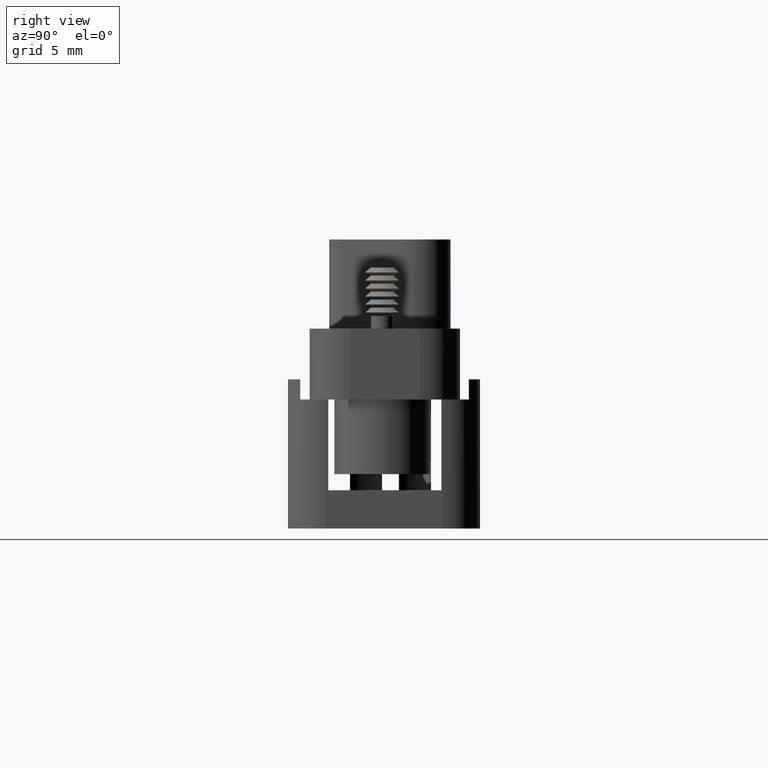
[diagram: clean part render]
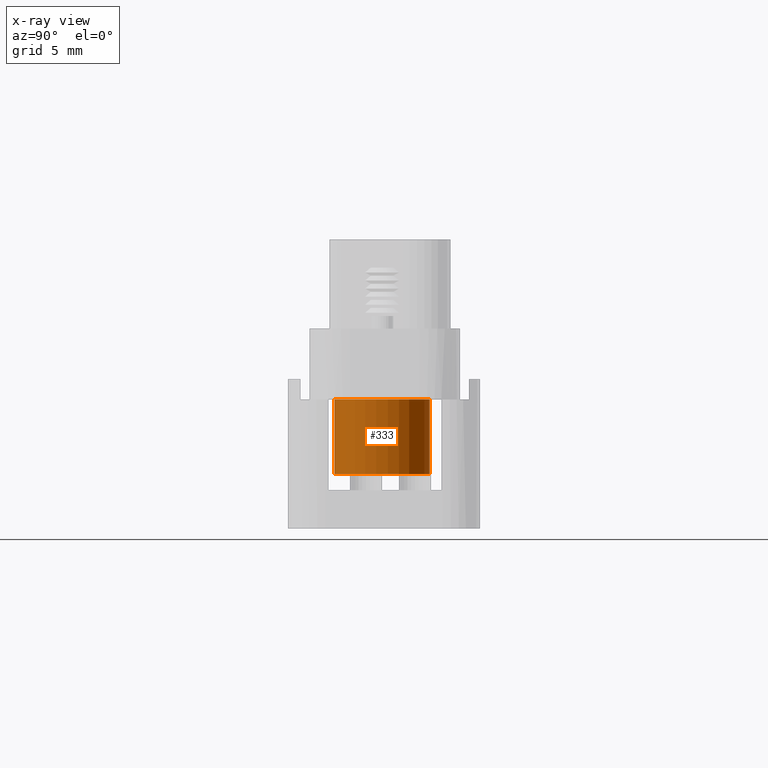
[diagram: x-ray — body ghosted, one internal face saturated and labeled with its STEP entity id]
A machine part, right view, then the same camera in x-ray: the body is ghosted and one INTERNAL B-rep face — a face not visible from any outside direction — is saturated and labeled: STEP entity #333.
In plain terms, the highlighted cylindrical surface (partial cylindrical patch) has radius 3.0066 mm, axis along (0, 0, -1).
Its self-contained STEP definition (entity closure, byte-faithful):
#101 = ORIENTED_EDGE ( 'NONE', *, *, #3034, .F. ) ;
#102 = ORIENTED_EDGE ( 'NONE', *, *, #3035, .T. ) ;
#103 = ORIENTED_EDGE ( 'NONE', *, *, #3036, .T. ) ;
#104 = ORIENTED_EDGE ( 'NONE', *, *, #4447, .F. ) ;
#333 = ADVANCED_FACE ( 'NONE', ( #4285 ), #4281, .T. ) ;
#679 = VECTOR ( 'NONE', #976, 39.37007874015748100 ) ;
#681 = LINE ( 'NONE', #977, #679 ) ;
#976 = DIRECTION ( 'NONE',  ( 0.0000000000000000000, 7.717653456933458900E-017, -1.000000000000000000 ) ) ;
#977 = CARTESIAN_POINT ( 'NONE',  ( -0.4480619370263265700, 0.3123748845143371500, -0.1677540991546065100 ) ) ;
#1332 = VECTOR ( 'NONE', #4661, 39.37007874015748100 ) ;
#1334 = LINE ( 'NONE', #4655, #1332 ) ;
#1336 = CIRCLE ( 'NONE', #1801, 0.1183695629592883000 ) ;
#1340 = CIRCLE ( 'NONE', #1800, 0.1183695629592882600 ) ;
#1800 = AXIS2_PLACEMENT_3D ( 'NONE', #4653, #4652, #4651 ) ;
#1801 = AXIS2_PLACEMENT_3D ( 'NONE', #4646, #4645, #4644 ) ;
#2320 = VERTEX_POINT ( 'NONE', #4735 ) ;
#2321 = VERTEX_POINT ( 'NONE', #4734 ) ;
#2327 = VERTEX_POINT ( 'NONE', #4701 ) ;
#2384 = VERTEX_POINT ( 'NONE', #4512 ) ;
#2630 = AXIS2_PLACEMENT_3D ( 'NONE', #3975, #3977, #3982 ) ;
#2798 = EDGE_LOOP ( 'NONE', ( #101, #102, #103, #104 ) ) ;
#3034 = EDGE_CURVE ( 'NONE', #2384, #2327, #1340, .T. ) ;
#3035 = EDGE_CURVE ( 'NONE', #2384, #2321, #1334, .T. ) ;
#3036 = EDGE_CURVE ( 'NONE', #2321, #2320, #1336, .T. ) ;
#3975 = CARTESIAN_POINT ( 'NONE',  ( -0.4480619370263265700, 0.1940053215550488200, -0.1677540991546065100 ) ) ;
#3977 = DIRECTION ( 'NONE',  ( 0.0000000000000000000, 7.717653456933458900E-017, -1.000000000000000000 ) ) ;
#3982 = DIRECTION ( 'NONE',  ( 0.0000000000000000000, 1.000000000000000000, 0.0000000000000000000 ) ) ;
#4281 = CYLINDRICAL_SURFACE ( 'NONE', #2630, 0.1183695629592883000 ) ;
#4285 = FACE_OUTER_BOUND ( 'NONE', #2798, .T. ) ;
#4447 = EDGE_CURVE ( 'NONE', #2327, #2320, #681, .T. ) ;
#4512 = CARTESIAN_POINT ( 'NONE',  ( -0.4480619370263265700, 0.07563575859576049400, 0.1522459008453934900 ) ) ;
#4644 = DIRECTION ( 'NONE',  ( 0.0000000000000000000, 1.000000000000000000, 7.212179184219023900E-017 ) ) ;
#4645 = DIRECTION ( 'NONE',  ( -0.0000000000000000000, -7.717653456933458900E-017, 1.000000000000000000 ) ) ;
#4646 = CARTESIAN_POINT ( 'NONE',  ( -0.4480619370263265700, 0.1940053215550488200, -0.03285192524156316900 ) ) ;
#4651 = DIRECTION ( 'NONE',  ( 0.0000000000000000000, 1.000000000000000000, 1.442435836843805300E-016 ) ) ;
#4652 = DIRECTION ( 'NONE',  ( -0.0000000000000000000, -7.717653456933458900E-017, 1.000000000000000000 ) ) ;
#4653 = CARTESIAN_POINT ( 'NONE',  ( -0.4480619370263265700, 0.1940053215550487900, 0.1522459008453934900 ) ) ;
#4655 = CARTESIAN_POINT ( 'NONE',  ( -0.4480619370263265700, 0.07563575859576054900, -0.1677540991546065100 ) ) ;
#4661 = DIRECTION ( 'NONE',  ( 0.0000000000000000000, 7.717653456933458900E-017, -1.000000000000000000 ) ) ;
#4701 = CARTESIAN_POINT ( 'NONE',  ( -0.4480619370263265700, 0.3123748845143370400, 0.1522459008453935200 ) ) ;
#4734 = CARTESIAN_POINT ( 'NONE',  ( -0.4480619370263265700, 0.07563575859576054900, -0.03285192524156318300 ) ) ;
#4735 = CARTESIAN_POINT ( 'NONE',  ( -0.4480619370263265700, 0.3123748845143371500, -0.03285192524156316200 ) ) ;